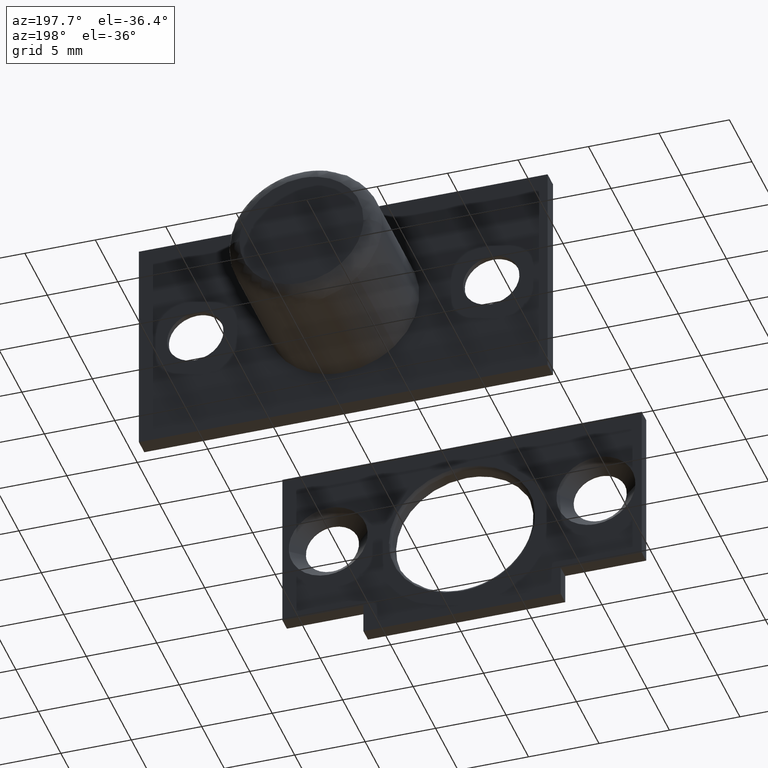
[diagram: clean part render]
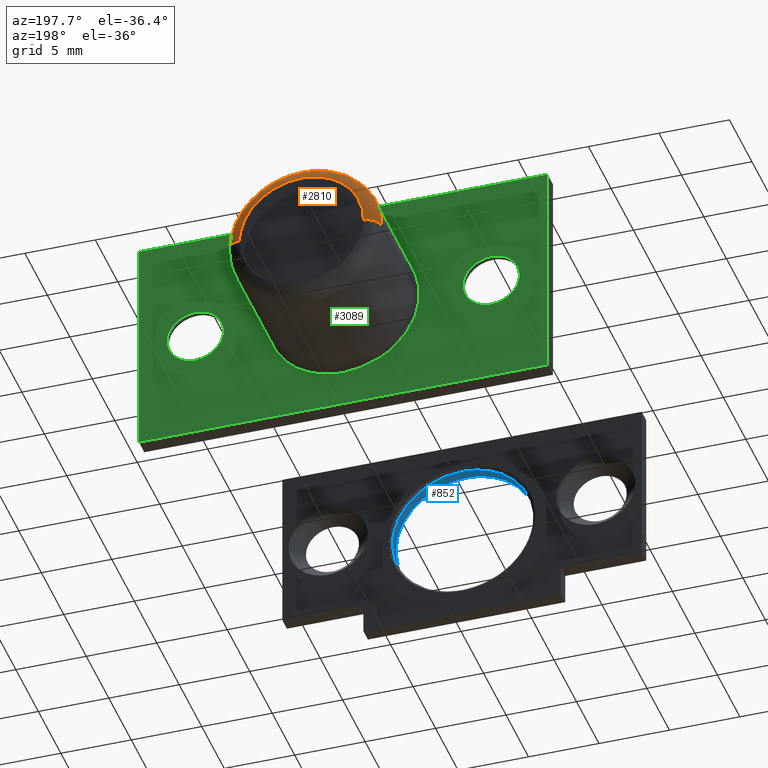
[diagram: same view with three faces highlighted in distinct colors, each labeled with its STEP entity id]
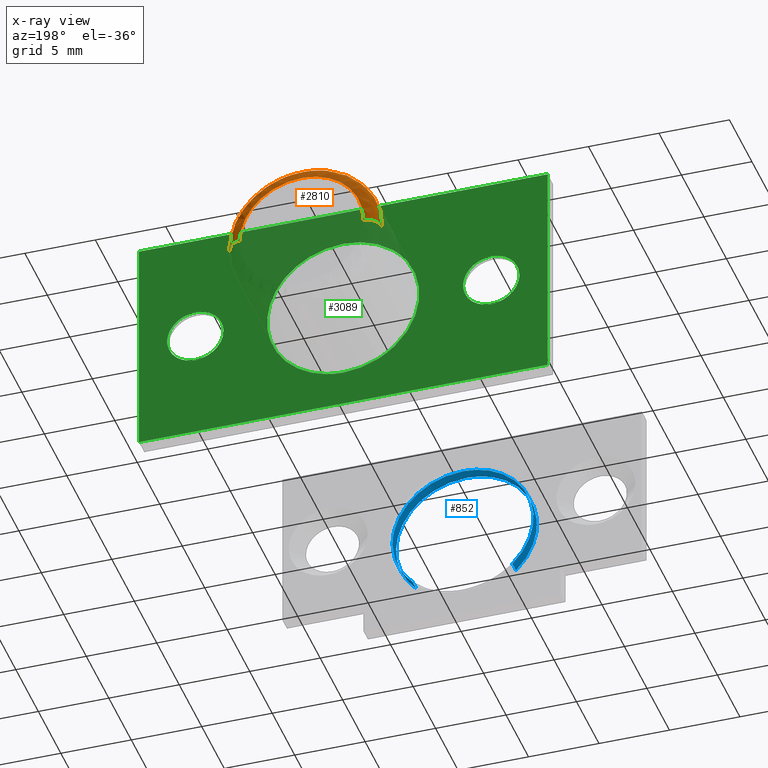
[diagram: x-ray of the same camera — body ghosted, the three highlighted faces saturated]
A machine part, auxiliary view with three faces highlighted in distinct colors.
The next image is the same camera in x-ray (body ghosted, the three faces saturated) — at least one of them is partly hidden behind the body in this view.
Their STEP definitions:

[orange] entity #2810 — the highlighted face is a freeform B-spline surface patch.
#2382=CARTESIAN_POINT('',(5.398295621806994,9.500000000565605,0.135702540803124));
#2383=VERTEX_POINT('',#2382);
#2399=CARTESIAN_POINT('',(0.0,9.500000000000000,5.400000999999997));
#2400=VERTEX_POINT('',#2399);
#2401=CARTESIAN_POINT('',(0.0,9.500000000000000,5.400000999999997));
#2402=CARTESIAN_POINT('',(5.265961506008867,9.500000000000002,5.400000999999996));
#2403=CARTESIAN_POINT('',(5.398295621806994,9.500000000565605,0.135702540803124));
#2411=(BOUNDED_CURVE()B_SPLINE_CURVE(2,(#2401,#2402,#2403),.UNSPECIFIED.,.F.,.U.)B_SPLINE_CURVE_WITH_KNOTS((3,3),(0.0,0.245579891751720),.UNSPECIFIED.)CURVE()GEOMETRIC_REPRESENTATION_ITEM()RATIONAL_B_SPLINE_CURVE((1.0,0.712285260115918,0.989826157640693))REPRESENTATION_ITEM(''));
#2412=EDGE_CURVE('',#2400,#2383,#2411,.T.);
#2414=CARTESIAN_POINT('',(-3.533433849873258,9.500000000000000,4.083485769360440));
#2415=VERTEX_POINT('',#2414);
#2416=CARTESIAN_POINT('',(-3.533433849873257,9.500000000000000,4.083485769360440));
#2417=CARTESIAN_POINT('',(-2.011975846731371,9.500000000000002,5.400000999999999));
#2418=CARTESIAN_POINT('',(0.0,9.500000000000000,5.400000999999997));
#2426=(BOUNDED_CURVE()B_SPLINE_CURVE(2,(#2416,#2417,#2418),.UNSPECIFIED.,.F.,.U.)B_SPLINE_CURVE_WITH_KNOTS((3,3),(0.885882155181983,1.0),.UNSPECIFIED.)CURVE()GEOMETRIC_REPRESENTATION_ITEM()RATIONAL_B_SPLINE_CURVE((0.854663304069898,0.866302628428788,1.0))REPRESENTATION_ITEM(''));
#2427=EDGE_CURVE('',#2415,#2400,#2426,.T.);
#2471=CARTESIAN_POINT('',(-5.398295621806994,9.500000000565605,-0.135702540803128));
#2472=VERTEX_POINT('',#2471);
#2473=CARTESIAN_POINT('',(-5.398295621806994,9.500000000565605,-0.135702540803128));
#2474=CARTESIAN_POINT('',(-5.400001000000000,9.500000000000000,-0.067861986312425));
#2475=CARTESIAN_POINT('',(-5.400001000000000,9.500000000000000,-2.847210E-015));
#2476=CARTESIAN_POINT('',(-5.400001000000000,9.499999999999998,2.468348133567610));
#2477=CARTESIAN_POINT('',(-3.533433849873257,9.500000000000000,4.083485769360440));
#2485=(BOUNDED_CURVE()B_SPLINE_CURVE(2,(#2473,#2474,#2475,#2476,#2477),.UNSPECIFIED.,.F.,.U.)B_SPLINE_CURVE_WITH_KNOTS((3,2,3),(0.745579891751720,0.750000000000000,0.885882155181983),.UNSPECIFIED.)CURVE()GEOMETRIC_REPRESENTATION_ITEM()RATIONAL_B_SPLINE_CURVE((0.989826157640694,0.994821521070630,1.0,0.840804152757759,0.854663304069898))REPRESENTATION_ITEM(''));
#2486=EDGE_CURVE('',#2472,#2415,#2485,.T.);
#2687=CARTESIAN_POINT('',(-4.398611447640397,10.500000000000000,-0.110572447457991));
#2688=VERTEX_POINT('',#2687);
#2689=CARTESIAN_POINT('',(-5.398295621806994,9.500000000565605,-0.135702540803128));
#2690=CARTESIAN_POINT('',(-5.398295620683151,10.499999969670689,-0.135702540495693));
#2691=CARTESIAN_POINT('',(-4.398611447640398,10.500000000000000,-0.110572447457991));
#2699=(BOUNDED_CURVE()B_SPLINE_CURVE(2,(#2689,#2690,#2691),.UNSPECIFIED.,.F.,.U.)B_SPLINE_CURVE_WITH_KNOTS((3,3),(-1.723441280820086,-0.263586910317547),.UNSPECIFIED.)CURVE()GEOMETRIC_REPRESENTATION_ITEM()RATIONAL_B_SPLINE_CURVE((0.883897566728178,0.626638732978030,0.888510397801046))REPRESENTATION_ITEM(''));
#2700=EDGE_CURVE('',#2472,#2688,#2699,.T.);
#2717=CARTESIAN_POINT('',(4.398611447640397,10.500000000000000,0.110572447457986));
#2718=VERTEX_POINT('',#2717);
#2734=CARTESIAN_POINT('',(5.398295621806994,9.500000000565605,0.135702540803124));
#2735=CARTESIAN_POINT('',(5.398295620683154,10.499999969670688,0.135702540495688));
#2736=CARTESIAN_POINT('',(4.398611447640398,10.500000000000000,0.110572447457986));
#2744=(BOUNDED_CURVE()B_SPLINE_CURVE(2,(#2734,#2735,#2736),.UNSPECIFIED.,.F.,.U.)B_SPLINE_CURVE_WITH_KNOTS((3,3),(-1.723441280820087,-0.263586910317547),.UNSPECIFIED.)CURVE()GEOMETRIC_REPRESENTATION_ITEM()RATIONAL_B_SPLINE_CURVE((0.883897566728178,0.626638732978030,0.888510397801046))REPRESENTATION_ITEM(''));
#2745=EDGE_CURVE('',#2383,#2718,#2744,.T.);
#2750=CARTESIAN_POINT('',(-5.395862697820052,9.430275812656380,-0.135641381597301));
#2751=CARTESIAN_POINT('',(-5.531504079417351,9.430275812656380,5.260221316222752));
#2752=CARTESIAN_POINT('',(-0.135641381597299,9.430275812656380,5.395862697820050));
#2753=CARTESIAN_POINT('',(5.260221316222753,9.430275812656380,5.531504079417347));
#2754=CARTESIAN_POINT('',(5.395862697820052,9.430275812656380,0.135641381597296));
#2755=CARTESIAN_POINT('',(-5.476010316573635,10.577335749656749,-0.137656135186910));
#2756=CARTESIAN_POINT('',(-5.613666451760546,10.577335749656751,5.338354181386726));
#2757=CARTESIAN_POINT('',(-0.137656135186908,10.577335749656749,5.476010316573634));
#2758=CARTESIAN_POINT('',(5.338354181386730,10.577335749656751,5.613666451760540));
#2759=CARTESIAN_POINT('',(5.476010316573635,10.577335749656749,0.137656135186905));
#2760=CARTESIAN_POINT('',(-4.329282701616886,10.497592346482175,-0.108829657064820));
#2761=CARTESIAN_POINT('',(-4.438112358681703,10.497592346482175,4.220453044552063));
#2762=CARTESIAN_POINT('',(-0.108829657064818,10.497592346482175,4.329282701616881));
#2763=CARTESIAN_POINT('',(4.220453044552069,10.497592346482175,4.438112358681700));
#2764=CARTESIAN_POINT('',(4.329282701616886,10.497592346482175,0.108829657064816));
#2772=(BOUNDED_SURFACE()B_SPLINE_SURFACE(2,2,((#2750,#2755,#2760),(#2751,#2756,#2761),(#2752,#2757,#2762),(#2753,#2758,#2763),(#2754,#2759,#2764)),.UNSPECIFIED.,.F.,.F.,.U.)B_SPLINE_SURFACE_WITH_KNOTS((3,2,3),(3,3),(0.0,8.942982330219714,17.885964660439431),(0.0,1.822370399371875),.UNSPECIFIED.)GEOMETRIC_REPRESENTATION_ITEM()RATIONAL_B_SPLINE_SURFACE(((0.910892942541887,0.599412921378678,0.915966645999969),(0.644098576606337,0.423848941437702,0.647686226727276),(0.910892942541887,0.599412921378678,0.915966645999969),(0.644098576606337,0.423848941437702,0.647686226727276),(0.910892942541887,0.599412921378678,0.915966645999969)))REPRESENTATION_ITEM('')SURFACE());
#2773=ORIENTED_EDGE('',*,*,#2412,.T.);
#2774=ORIENTED_EDGE('',*,*,#2745,.T.);
#2775=CARTESIAN_POINT('',(0.0,10.500000000000000,4.400000999999997));
#2776=VERTEX_POINT('',#2775);
#2777=CARTESIAN_POINT('',(0.0,10.500000000000000,4.400000999999997));
#2778=CARTESIAN_POINT('',(4.290783626477132,10.500000000000000,4.400000999999996));
#2779=CARTESIAN_POINT('',(4.398611447640397,10.500000000000005,0.110572447457986));
#2787=(BOUNDED_CURVE()B_SPLINE_CURVE(2,(#2777,#2778,#2779),.UNSPECIFIED.,.F.,.U.)B_SPLINE_CURVE_WITH_KNOTS((3,3),(0.0,0.245579891610995),.UNSPECIFIED.)CURVE()GEOMETRIC_REPRESENTATION_ITEM()RATIONAL_B_SPLINE_CURVE((1.0,0.712285260280788,0.989826157322614))REPRESENTATION_ITEM(''));
#2788=EDGE_CURVE('',#2776,#2718,#2787,.T.);
#2789=ORIENTED_EDGE('',*,*,#2788,.F.);
#2790=CARTESIAN_POINT('',(-4.398611447640397,10.500000000000005,-0.110572447457991));
#2791=CARTESIAN_POINT('',(-4.400001000000000,10.500000000000002,-0.055294955906970));
#2792=CARTESIAN_POINT('',(-4.400001000000000,10.500000000000000,-2.847210E-015));
#2793=CARTESIAN_POINT('',(-4.400000999999999,10.500000000000002,4.400000999999998));
#2794=CARTESIAN_POINT('',(0.0,10.500000000000000,4.400000999999997));
#2802=(BOUNDED_CURVE()B_SPLINE_CURVE(2,(#2790,#2791,#2792,#2793,#2794),.UNSPECIFIED.,.F.,.U.)B_SPLINE_CURVE_WITH_KNOTS((3,2,3),(0.745579891610995,0.750000000000000,1.0),.UNSPECIFIED.)CURVE()GEOMETRIC_REPRESENTATION_ITEM()RATIONAL_B_SPLINE_CURVE((0.989826157322614,0.994821520905760,1.0,0.707106781186548,1.0))REPRESENTATION_ITEM(''));
#2803=EDGE_CURVE('',#2688,#2776,#2802,.T.);
#2804=ORIENTED_EDGE('',*,*,#2803,.F.);
#2805=ORIENTED_EDGE('',*,*,#2700,.F.);
#2806=ORIENTED_EDGE('',*,*,#2486,.T.);
#2807=ORIENTED_EDGE('',*,*,#2427,.T.);
#2808=EDGE_LOOP('',(#2773,#2774,#2789,#2804,#2805,#2806,#2807));
#2809=FACE_OUTER_BOUND('',#2808,.T.);
#2810=ADVANCED_FACE('',(#2809),#2772,.T.);

[blue] entity #852 — the highlighted face is a freeform B-spline surface patch.
#716=CARTESIAN_POINT('',(85.264832754229289,-24.601389289179640,-3.504546321499252));
#717=CARTESIAN_POINT('',(81.760286432730041,-24.601389289179636,0.061705924271656));
#718=CARTESIAN_POINT('',(85.326538678500953,-24.601389289179640,3.566252245770908));
#719=CARTESIAN_POINT('',(88.892790924271864,-24.601389289179636,7.070798567270160));
#720=CARTESIAN_POINT('',(92.397337245771112,-24.601389289179640,3.504546321499252));
#721=CARTESIAN_POINT('',(95.901883567270360,-24.601389289179636,-0.061705924271656));
#722=CARTESIAN_POINT('',(92.335631321499449,-24.601389289179640,-3.566252245770908));
#723=CARTESIAN_POINT('',(85.264832754229289,-23.760889287819062,-3.504546321499252));
#724=CARTESIAN_POINT('',(81.760286432730041,-23.760889287819065,0.061705924271656));
#725=CARTESIAN_POINT('',(85.326538678500953,-23.760889287819062,3.566252245770908));
#726=CARTESIAN_POINT('',(88.892790924271864,-23.760889287819065,7.070798567270160));
#727=CARTESIAN_POINT('',(92.397337245771112,-23.760889287819062,3.504546321499252));
#728=CARTESIAN_POINT('',(95.901883567270360,-23.760889287819065,-0.061705924271656));
#729=CARTESIAN_POINT('',(92.335631321499449,-23.760889287819062,-3.566252245770908));
#737=(BOUNDED_SURFACE()B_SPLINE_SURFACE(2,1,((#716,#723),(#717,#724),(#718,#725),(#719,#726),(#720,#727),(#721,#728),(#722,#729)),.UNSPECIFIED.,.F.,.F.,.U.)B_SPLINE_SURFACE_WITH_KNOTS((3,2,2,3),(2,2),(0.0,8.284271247461899,16.568542494923800,24.852813742385699),(0.0,1.0),.UNSPECIFIED.)GEOMETRIC_REPRESENTATION_ITEM()RATIONAL_B_SPLINE_SURFACE(((1.0,1.0),(0.707106781186548,0.707106781186548),(1.0,1.0),(0.707106781186548,0.707106781186548),(1.0,1.0),(0.707106781186548,0.707106781186548),(1.0,1.0)))REPRESENTATION_ITEM('')SURFACE());
#738=CARTESIAN_POINT('',(83.831479778983677,-24.581389288927859,-0.062830199620236));
#739=VERTEX_POINT('',#738);
#740=CARTESIAN_POINT('',(85.264832361932164,-24.581389288178030,-3.504545922264295));
#741=VERTEX_POINT('',#740);
#742=CARTESIAN_POINT('',(83.831479778983677,-24.581389288927856,-0.062830199620236));
#743=CARTESIAN_POINT('',(83.856724612036032,-24.581389288490175,-2.071644424089932));
#744=CARTESIAN_POINT('',(85.264832361932164,-24.581389288178023,-3.504545922264295));
#752=(BOUNDED_CURVE()B_SPLINE_CURVE(2,(#742,#743,#744),.UNSPECIFIED.,.F.,.U.)B_SPLINE_CURVE_WITH_KNOTS((3,3),(0.252215704092587,0.373683208627567),.UNSPECIFIED.)CURVE()GEOMETRIC_REPRESENTATION_ITEM()RATIONAL_B_SPLINE_CURVE((0.994854295611065,0.855068762011657,0.853569642085332))REPRESENTATION_ITEM(''));
#753=EDGE_CURVE('',#739,#741,#752,.T.);
#754=ORIENTED_EDGE('',*,*,#753,.T.);
#755=CARTESIAN_POINT('',(85.264832439610899,-23.781389287852249,-3.504546001341212));
#756=VERTEX_POINT('',#755);
#757=CARTESIAN_POINT('',(85.264832361932164,-24.581389288178030,-3.504545922264295));
#758=CARTESIAN_POINT('',(85.264832439610899,-23.781389287852249,-3.504546001341212));
#759=QUASI_UNIFORM_CURVE('',1,(#757,#758),.UNSPECIFIED.,.F.,.U.);
#760=EDGE_CURVE('',#741,#756,#759,.T.);
#761=ORIENTED_EDGE('',*,*,#760,.T.);
#762=CARTESIAN_POINT('',(88.831085000000201,-23.781389287852249,5.0));
#763=VERTEX_POINT('',#762);
#764=CARTESIAN_POINT('',(88.831085000000201,-23.781389287852249,5.0));
#765=CARTESIAN_POINT('',(83.831085000000201,-23.781389287852253,5.000000000000001));
#766=CARTESIAN_POINT('',(83.831085000000201,-23.781389287852249,0.0));
#767=CARTESIAN_POINT('',(83.831085000000201,-23.781389287852246,-2.045553483138360));
#768=CARTESIAN_POINT('',(85.264832439610899,-23.781389287852249,-3.504546001341211));
#776=(BOUNDED_CURVE()B_SPLINE_CURVE(2,(#764,#765,#766,#767,#768),.UNSPECIFIED.,.F.,.U.)B_SPLINE_CURVE_WITH_KNOTS((3,2,3),(0.0,0.250000000000000,0.373683215316584),.UNSPECIFIED.)CURVE()GEOMETRIC_REPRESENTATION_ITEM()RATIONAL_B_SPLINE_CURVE((1.0,0.707106781186548,1.0,0.855096099810914,0.853569641920224))REPRESENTATION_ITEM(''));
#777=EDGE_CURVE('',#763,#756,#776,.T.);
#778=ORIENTED_EDGE('',*,*,#777,.F.);
#779=CARTESIAN_POINT('',(92.335631058629019,-23.781389287852249,-3.566252504092935));
#780=VERTEX_POINT('',#779);
#781=CARTESIAN_POINT('',(92.335631058629019,-23.781389287852246,-3.566252504092935));
#782=CARTESIAN_POINT('',(93.831085000000201,-23.781389287852249,-2.096674442151647));
#783=CARTESIAN_POINT('',(93.831085000000201,-23.781389287852249,0.0));
#784=CARTESIAN_POINT('',(93.831085000000201,-23.781389287852253,5.000000000000001));
#785=CARTESIAN_POINT('',(88.831085000000201,-23.781389287852249,5.0));
#793=(BOUNDED_CURVE()B_SPLINE_CURVE(2,(#781,#782,#783,#784,#785),.UNSPECIFIED.,.F.,.U.)B_SPLINE_CURVE_WITH_KNOTS((3,2,3),(0.623683220164358,0.750000000000000,1.0),.UNSPECIFIED.)CURVE()GEOMETRIC_REPRESENTATION_ITEM()RATIONAL_B_SPLINE_CURVE((0.853569641800565,0.852010687055155,1.0,0.707106781186548,1.0))REPRESENTATION_ITEM(''));
#794=EDGE_CURVE('',#780,#763,#793,.T.);
#795=ORIENTED_EDGE('',*,*,#794,.F.);
#796=CARTESIAN_POINT('',(92.335631055423292,-24.581389287851930,-3.566252507243181));
#797=VERTEX_POINT('',#796);
#798=CARTESIAN_POINT('',(92.335631055423292,-24.581389287851930,-3.566252507243181));
#799=CARTESIAN_POINT('',(92.335631058629019,-23.781389287852249,-3.566252504092935));
#800=QUASI_UNIFORM_CURVE('',1,(#798,#799),.UNSPECIFIED.,.F.,.U.);
#801=EDGE_CURVE('',#797,#780,#800,.T.);
#802=ORIENTED_EDGE('',*,*,#801,.F.);
#803=CARTESIAN_POINT('',(93.818913369201852,-24.581389289147261,0.348666257884441));
#804=VERTEX_POINT('',#803);
#805=CARTESIAN_POINT('',(92.335631055423292,-24.581389287851923,-3.566252507243181));
#806=CARTESIAN_POINT('',(93.831085000000186,-24.581389287852154,-2.096674447436485));
#807=CARTESIAN_POINT('',(93.831085000000201,-24.581389287852151,0.0));
#808=CARTESIAN_POINT('',(93.831085000000201,-24.581389287852154,0.174545579380814));
#809=CARTESIAN_POINT('',(93.818913369201852,-24.581389289147268,0.348666257884441));
#817=(BOUNDED_CURVE()B_SPLINE_CURVE(2,(#805,#806,#807,#808,#809),.UNSPECIFIED.,.F.,.U.)B_SPLINE_CURVE_WITH_KNOTS((3,2,3),(0.623683219893085,0.750000000000000,0.762166313465364),.UNSPECIFIED.)CURVE()GEOMETRIC_REPRESENTATION_ITEM()RATIONAL_B_SPLINE_CURVE((0.853569641807261,0.852010686737338,1.0,0.985746277152144,0.972879876386012))REPRESENTATION_ITEM(''));
#818=EDGE_CURVE('',#797,#804,#817,.T.);
#819=ORIENTED_EDGE('',*,*,#818,.T.);
#820=CARTESIAN_POINT('',(88.831085000000201,-24.581389287852151,5.0));
#821=VERTEX_POINT('',#820);
#822=CARTESIAN_POINT('',(93.818913369201852,-24.581389289147268,0.348666257884441));
#823=CARTESIAN_POINT('',(93.493769236319750,-24.581389287852140,5.0));
#824=CARTESIAN_POINT('',(88.831085000000201,-24.581389287852151,5.0));
#832=(BOUNDED_CURVE()B_SPLINE_CURVE(2,(#822,#823,#824),.UNSPECIFIED.,.F.,.U.)B_SPLINE_CURVE_WITH_KNOTS((3,3),(0.762166313465364,1.0),.UNSPECIFIED.)CURVE()GEOMETRIC_REPRESENTATION_ITEM()RATIONAL_B_SPLINE_CURVE((0.972879876386012,0.721360504034403,1.0))REPRESENTATION_ITEM(''));
#833=EDGE_CURVE('',#804,#821,#832,.T.);
#834=ORIENTED_EDGE('',*,*,#833,.T.);
#835=CARTESIAN_POINT('',(88.831085000000201,-24.581389287852151,5.0));
#836=CARTESIAN_POINT('',(83.831085000000201,-24.581389287852144,5.000000000000001));
#837=CARTESIAN_POINT('',(83.831085000000201,-24.581389287852151,0.0));
#838=CARTESIAN_POINT('',(83.831085000000215,-24.581389287852154,-0.031416340162945));
#839=CARTESIAN_POINT('',(83.831479778983677,-24.581389288927859,-0.062830199620236));
#847=(BOUNDED_CURVE()B_SPLINE_CURVE(2,(#835,#836,#837,#838,#839),.UNSPECIFIED.,.F.,.U.)B_SPLINE_CURVE_WITH_KNOTS((3,2,3),(0.0,0.250000000000000,0.252215704092587),.UNSPECIFIED.)CURVE()GEOMETRIC_REPRESENTATION_ITEM()RATIONAL_B_SPLINE_CURVE((1.0,0.707106781186548,1.0,0.997404141185537,0.994854295611065))REPRESENTATION_ITEM(''));
#848=EDGE_CURVE('',#821,#739,#847,.T.);
#849=ORIENTED_EDGE('',*,*,#848,.T.);
#850=EDGE_LOOP('',(#754,#761,#778,#795,#802,#819,#834,#849));
#851=FACE_OUTER_BOUND('',#850,.T.);
#852=ADVANCED_FACE('',(#851),#737,.F.);

[green] entity #3089 — the highlighted face is a freeform B-spline surface patch.
#1668=CARTESIAN_POINT('',(12.486938320145081,1.199997000000000,-0.228201910462429));
#1669=VERTEX_POINT('',#1668);
#1675=CARTESIAN_POINT('',(10.500000000000000,1.199997000000000,-2.000000000000003));
#1676=VERTEX_POINT('',#1675);
#1677=CARTESIAN_POINT('',(12.486938320145081,1.199996999999999,-0.228201910462429));
#1678=CARTESIAN_POINT('',(12.283444961621033,1.199997000000000,-2.000000000000002));
#1679=CARTESIAN_POINT('',(10.500000000000000,1.199997000000000,-2.000000000000003));
#1687=(BOUNDED_CURVE()B_SPLINE_CURVE(2,(#1677,#1678,#1679),.UNSPECIFIED.,.F.,.U.)B_SPLINE_CURVE_WITH_KNOTS((3,3),(0.269767854846008,0.500000000000000),.UNSPECIFIED.)CURVE()GEOMETRIC_REPRESENTATION_ITEM()RATIONAL_B_SPLINE_CURVE((0.957343541234126,0.730266263726086,1.0))REPRESENTATION_ITEM(''));
#1688=EDGE_CURVE('',#1669,#1676,#1687,.T.);
#1690=CARTESIAN_POINT('',(8.503730403178508,1.199997000000000,-0.122097079433352));
#1691=VERTEX_POINT('',#1690);
#1692=CARTESIAN_POINT('',(10.500000000000000,1.199997000000000,-2.000000000000003));
#1693=CARTESIAN_POINT('',(8.618587866875325,1.199997000000000,-2.000000000000004));
#1694=CARTESIAN_POINT('',(8.503730403178508,1.199997000000000,-0.122097079433352));
#1702=(BOUNDED_CURVE()B_SPLINE_CURVE(2,(#1692,#1693,#1694),.UNSPECIFIED.,.F.,.U.)B_SPLINE_CURVE_WITH_KNOTS((3,3),(0.500000000000000,0.739332962179106),.UNSPECIFIED.)CURVE()GEOMETRIC_REPRESENTATION_ITEM()RATIONAL_B_SPLINE_CURVE((1.0,0.719603993356813,0.976072041538476))REPRESENTATION_ITEM(''));
#1703=EDGE_CURVE('',#1676,#1691,#1702,.T.);
#1798=CARTESIAN_POINT('',(10.500000000000000,1.199997000000000,1.999999999999997));
#1799=VERTEX_POINT('',#1798);
#1800=CARTESIAN_POINT('',(8.503730403178508,1.199997000000000,-0.122097079433352));
#1801=CARTESIAN_POINT('',(8.500000000000000,1.199997000000000,-0.061105526961836));
#1802=CARTESIAN_POINT('',(8.500000000000000,1.199997000000000,-2.847210E-015));
#1803=CARTESIAN_POINT('',(8.500000000000002,1.199997000000000,1.999999999999997));
#1804=CARTESIAN_POINT('',(10.500000000000000,1.199997000000000,1.999999999999997));
#1812=(BOUNDED_CURVE()B_SPLINE_CURVE(2,(#1800,#1801,#1802,#1803,#1804),.UNSPECIFIED.,.F.,.U.)B_SPLINE_CURVE_WITH_KNOTS((3,2,3),(0.739332962179107,0.750000000000000,1.0),.UNSPECIFIED.)CURVE()GEOMETRIC_REPRESENTATION_ITEM()RATIONAL_B_SPLINE_CURVE((0.976072041538478,0.987502787829735,1.0,0.707106781186548,1.0))REPRESENTATION_ITEM(''));
#1813=EDGE_CURVE('',#1691,#1799,#1812,.T.);
#1815=CARTESIAN_POINT('',(10.500000000000000,1.199997000000000,1.999999999999997));
#1816=CARTESIAN_POINT('',(12.500000000000000,1.199997000000000,1.999999999999997));
#1817=CARTESIAN_POINT('',(12.500000000000000,1.199997000000000,-2.847210E-015));
#1818=CARTESIAN_POINT('',(12.499999999999996,1.199997000000000,-0.114475056767412));
#1819=CARTESIAN_POINT('',(12.486938320145082,1.199997000000000,-0.228201910462429));
#1827=(BOUNDED_CURVE()B_SPLINE_CURVE(2,(#1815,#1816,#1817,#1818,#1819),.UNSPECIFIED.,.F.,.U.)B_SPLINE_CURVE_WITH_KNOTS((3,2,3),(0.0,0.250000000000000,0.269767854846009),.UNSPECIFIED.)CURVE()GEOMETRIC_REPRESENTATION_ITEM()RATIONAL_B_SPLINE_CURVE((1.0,0.707106781186548,1.0,0.976840517460462,0.957343541234126))REPRESENTATION_ITEM(''));
#1828=EDGE_CURVE('',#1799,#1669,#1827,.T.);
#1996=CARTESIAN_POINT('',(-8.513061679854918,1.199997000000000,-0.228201910462429));
#1997=VERTEX_POINT('',#1996);
#2003=CARTESIAN_POINT('',(-10.500000000000000,1.199997000000000,-2.000000000000003));
#2004=VERTEX_POINT('',#2003);
#2005=CARTESIAN_POINT('',(-8.513061679854918,1.199996999999999,-0.228201910462429));
#2006=CARTESIAN_POINT('',(-8.716555038378967,1.199997000000000,-2.000000000000002));
#2007=CARTESIAN_POINT('',(-10.500000000000000,1.199997000000000,-2.000000000000003));
#2015=(BOUNDED_CURVE()B_SPLINE_CURVE(2,(#2005,#2006,#2007),.UNSPECIFIED.,.F.,.U.)B_SPLINE_CURVE_WITH_KNOTS((3,3),(0.269767854846008,0.500000000000000),.UNSPECIFIED.)CURVE()GEOMETRIC_REPRESENTATION_ITEM()RATIONAL_B_SPLINE_CURVE((0.957343541234126,0.730266263726086,1.0))REPRESENTATION_ITEM(''));
#2016=EDGE_CURVE('',#1997,#2004,#2015,.T.);
#2018=CARTESIAN_POINT('',(-12.496269596821490,1.199997000000000,-0.122097079433352));
#2019=VERTEX_POINT('',#2018);
#2020=CARTESIAN_POINT('',(-10.500000000000000,1.199997000000000,-2.000000000000003));
#2021=CARTESIAN_POINT('',(-12.381412133124675,1.199997000000000,-2.000000000000004));
#2022=CARTESIAN_POINT('',(-12.496269596821493,1.199997000000000,-0.122097079433352));
#2030=(BOUNDED_CURVE()B_SPLINE_CURVE(2,(#2020,#2021,#2022),.UNSPECIFIED.,.F.,.U.)B_SPLINE_CURVE_WITH_KNOTS((3,3),(0.500000000000000,0.739332962179106),.UNSPECIFIED.)CURVE()GEOMETRIC_REPRESENTATION_ITEM()RATIONAL_B_SPLINE_CURVE((1.0,0.719603993356813,0.976072041538476))REPRESENTATION_ITEM(''));
#2031=EDGE_CURVE('',#2004,#2019,#2030,.T.);
#2126=CARTESIAN_POINT('',(-10.500000000000000,1.199997000000000,1.999999999999997));
#2127=VERTEX_POINT('',#2126);
#2128=CARTESIAN_POINT('',(-12.496269596821495,1.199997000000000,-0.122097079433352));
#2129=CARTESIAN_POINT('',(-12.500000000000000,1.199997000000000,-0.061105526961836));
#2130=CARTESIAN_POINT('',(-12.500000000000000,1.199997000000000,-2.847210E-015));
#2131=CARTESIAN_POINT('',(-12.500000000000000,1.199997000000000,1.999999999999997));
#2132=CARTESIAN_POINT('',(-10.500000000000000,1.199997000000000,1.999999999999997));
#2140=(BOUNDED_CURVE()B_SPLINE_CURVE(2,(#2128,#2129,#2130,#2131,#2132),.UNSPECIFIED.,.F.,.U.)B_SPLINE_CURVE_WITH_KNOTS((3,2,3),(0.739332962179107,0.750000000000000,1.0),.UNSPECIFIED.)CURVE()GEOMETRIC_REPRESENTATION_ITEM()RATIONAL_B_SPLINE_CURVE((0.976072041538478,0.987502787829735,1.0,0.707106781186548,1.0))REPRESENTATION_ITEM(''));
#2141=EDGE_CURVE('',#2019,#2127,#2140,.T.);
#2143=CARTESIAN_POINT('',(-10.500000000000000,1.199997000000000,1.999999999999997));
#2144=CARTESIAN_POINT('',(-8.500000000000002,1.199997000000000,1.999999999999997));
#2145=CARTESIAN_POINT('',(-8.500000000000000,1.199997000000000,-2.847210E-015));
#2146=CARTESIAN_POINT('',(-8.499999999999998,1.199997000000000,-0.114475056767412));
#2147=CARTESIAN_POINT('',(-8.513061679854918,1.199997000000000,-0.228201910462429));
#2155=(BOUNDED_CURVE()B_SPLINE_CURVE(2,(#2143,#2144,#2145,#2146,#2147),.UNSPECIFIED.,.F.,.U.)B_SPLINE_CURVE_WITH_KNOTS((3,2,3),(0.0,0.250000000000000,0.269767854846009),.UNSPECIFIED.)CURVE()GEOMETRIC_REPRESENTATION_ITEM()RATIONAL_B_SPLINE_CURVE((1.0,0.707106781186548,1.0,0.976840517460462,0.957343541234126))REPRESENTATION_ITEM(''));
#2156=EDGE_CURVE('',#2127,#1997,#2155,.T.);
#2311=CARTESIAN_POINT('',(-3.533433838263440,1.199997000000043,4.083485779406393));
#2312=VERTEX_POINT('',#2311);
#2313=CARTESIAN_POINT('',(0.0,1.199997000000000,5.400000999999997));
#2314=VERTEX_POINT('',#2313);
#2315=CARTESIAN_POINT('',(-3.533433838263440,1.199997000000043,4.083485779406393));
#2316=CARTESIAN_POINT('',(-2.011975837989309,1.199997000000000,5.400000999999997));
#2317=CARTESIAN_POINT('',(0.0,1.199997000000000,5.400000999999997));
#2325=(BOUNDED_CURVE()B_SPLINE_CURVE(2,(#2315,#2316,#2317),.UNSPECIFIED.,.F.,.U.)B_SPLINE_CURVE_WITH_KNOTS((3,3),(0.885882155611534,1.0),.UNSPECIFIED.)CURVE()GEOMETRIC_REPRESENTATION_ITEM()RATIONAL_B_SPLINE_CURVE((0.854663304157521,0.866302628932038,1.0))REPRESENTATION_ITEM(''));
#2326=EDGE_CURVE('',#2312,#2314,#2325,.T.);
#2328=CARTESIAN_POINT('',(0.0,1.199997000000000,-5.400001000000002));
#2329=VERTEX_POINT('',#2328);
#2330=CARTESIAN_POINT('',(0.0,1.199997000000000,5.400000999999997));
#2331=CARTESIAN_POINT('',(5.400001000000000,1.199997000000000,5.400000999999997));
#2332=CARTESIAN_POINT('',(5.400001000000000,1.199997000000000,-2.847210E-015));
#2333=CARTESIAN_POINT('',(5.400001000000000,1.199997000000000,-5.400001000000002));
#2334=CARTESIAN_POINT('',(0.0,1.199997000000000,-5.400001000000002));
#2342=(BOUNDED_CURVE()B_SPLINE_CURVE(2,(#2330,#2331,#2332,#2333,#2334),.UNSPECIFIED.,.F.,.U.)B_SPLINE_CURVE_WITH_KNOTS((3,2,3),(0.0,0.250000000000000,0.500000000000000),.UNSPECIFIED.)CURVE()GEOMETRIC_REPRESENTATION_ITEM()RATIONAL_B_SPLINE_CURVE((1.0,0.707106781186547,1.0,0.707106781186547,1.0))REPRESENTATION_ITEM(''));
#2343=EDGE_CURVE('',#2314,#2329,#2342,.T.);
#2345=CARTESIAN_POINT('',(-3.648187369666437,1.199997000000000,-3.981298747369626));
#2346=VERTEX_POINT('',#2345);
#2347=CARTESIAN_POINT('',(0.0,1.199997000000000,-5.400001000000002));
#2348=CARTESIAN_POINT('',(-2.099944874067488,1.199997000000000,-5.400001000000003));
#2349=CARTESIAN_POINT('',(-3.648187369666437,1.199997000000001,-3.981298747369626));
#2357=(BOUNDED_CURVE()B_SPLINE_CURVE(2,(#2347,#2348,#2349),.UNSPECIFIED.,.F.,.U.)B_SPLINE_CURVE_WITH_KNOTS((3,3),(0.500000000000000,0.618415176699014),.UNSPECIFIED.)CURVE()GEOMETRIC_REPRESENTATION_ITEM()RATIONAL_B_SPLINE_CURVE((1.0,0.861267990961048,0.853959784835350))REPRESENTATION_ITEM(''));
#2358=EDGE_CURVE('',#2329,#2346,#2357,.T.);
#2455=CARTESIAN_POINT('',(-3.648187369666437,1.199997000000001,-3.981298747369626));
#2456=CARTESIAN_POINT('',(-5.400001000000000,1.199997000000000,-2.376057998192897));
#2457=CARTESIAN_POINT('',(-5.400001000000000,1.199997000000000,-2.847210E-015));
#2458=CARTESIAN_POINT('',(-5.400001000000001,1.199997000000000,2.468348142847942));
#2459=CARTESIAN_POINT('',(-3.533433838263440,1.199997000000043,4.083485779406393));
#2467=(BOUNDED_CURVE()B_SPLINE_CURVE(2,(#2455,#2456,#2457,#2458,#2459),.UNSPECIFIED.,.F.,.U.)B_SPLINE_CURVE_WITH_KNOTS((3,2,3),(0.618415176699013,0.750000000000000,0.885882155611534),.UNSPECIFIED.)CURVE()GEOMETRIC_REPRESENTATION_ITEM()RATIONAL_B_SPLINE_CURVE((0.853959784835350,0.845838790225498,1.0,0.840804152254510,0.854663304157521))REPRESENTATION_ITEM(''));
#2468=EDGE_CURVE('',#2346,#2312,#2467,.T.);
#2953=CARTESIAN_POINT('',(-14.500000000000000,1.199997000000064,8.0));
#2954=VERTEX_POINT('',#2953);
#2955=CARTESIAN_POINT('',(-14.500000000000000,1.199997000000064,-8.0));
#2956=VERTEX_POINT('',#2955);
#2957=CARTESIAN_POINT('',(-14.500000000000000,1.199997000000064,8.0));
#2958=CARTESIAN_POINT('',(-14.500000000000000,1.199997000000064,-8.0));
#2959=QUASI_UNIFORM_CURVE('',1,(#2957,#2958),.UNSPECIFIED.,.F.,.U.);
#2960=EDGE_CURVE('',#2954,#2956,#2959,.T.);
#2989=CARTESIAN_POINT('',(14.500000000000000,1.199997000000064,8.0));
#2990=VERTEX_POINT('',#2989);
#2991=CARTESIAN_POINT('',(14.500000000000000,1.199997000000064,8.0));
#2992=CARTESIAN_POINT('',(-14.500000000000000,1.199997000000064,8.0));
#2993=QUASI_UNIFORM_CURVE('',1,(#2991,#2992),.UNSPECIFIED.,.F.,.U.);
#2994=EDGE_CURVE('',#2990,#2954,#2993,.T.);
#3017=CARTESIAN_POINT('',(14.500000000000000,1.199997000000064,-8.0));
#3018=VERTEX_POINT('',#3017);
#3019=CARTESIAN_POINT('',(14.500000000000000,1.199997000000064,-8.0));
#3020=CARTESIAN_POINT('',(14.500000000000000,1.199997000000064,8.0));
#3021=QUASI_UNIFORM_CURVE('',1,(#3019,#3020),.UNSPECIFIED.,.F.,.U.);
#3022=EDGE_CURVE('',#3018,#2990,#3021,.T.);
#3045=CARTESIAN_POINT('',(-14.500000000000000,1.199997000000064,-8.0));
#3046=CARTESIAN_POINT('',(14.500000000000000,1.199997000000064,-8.0));
#3047=QUASI_UNIFORM_CURVE('',1,(#3045,#3046),.UNSPECIFIED.,.F.,.U.);
#3048=EDGE_CURVE('',#2956,#3018,#3047,.T.);
#3060=CARTESIAN_POINT('',(-15.948549943792379,1.199997000000000,8.799199968988896));
#3061=CARTESIAN_POINT('',(15.948550721632991,1.199997000000000,8.799199968988896));
#3062=CARTESIAN_POINT('',(-15.948549943792379,1.199997000000000,-8.799200398142338));
#3063=CARTESIAN_POINT('',(15.948550721632991,1.199997000000000,-8.799200398142338));
#3064=B_SPLINE_SURFACE_WITH_KNOTS('',1,1,((#3060,#3062),(#3061,#3063)),.UNSPECIFIED.,.F.,.F.,.U.,(2,2),(2,2),(0.0,31.897100665425370),(0.0,17.598400367131230),.UNSPECIFIED.);
#3065=ORIENTED_EDGE('',*,*,#3048,.F.);
#3066=ORIENTED_EDGE('',*,*,#2960,.F.);
#3067=ORIENTED_EDGE('',*,*,#2994,.F.);
#3068=ORIENTED_EDGE('',*,*,#3022,.F.);
#3069=EDGE_LOOP('',(#3065,#3066,#3067,#3068));
#3070=FACE_OUTER_BOUND('',#3069,.T.);
#3071=ORIENTED_EDGE('',*,*,#2343,.F.);
#3072=ORIENTED_EDGE('',*,*,#2326,.F.);
#3073=ORIENTED_EDGE('',*,*,#2468,.F.);
#3074=ORIENTED_EDGE('',*,*,#2358,.F.);
#3075=EDGE_LOOP('',(#3071,#3072,#3073,#3074));
#3076=FACE_BOUND('',#3075,.T.);
#3077=ORIENTED_EDGE('',*,*,#2031,.F.);
#3078=ORIENTED_EDGE('',*,*,#2016,.F.);
#3079=ORIENTED_EDGE('',*,*,#2156,.F.);
#3080=ORIENTED_EDGE('',*,*,#2141,.F.);
#3081=EDGE_LOOP('',(#3077,#3078,#3079,#3080));
#3082=FACE_BOUND('',#3081,.T.);
#3083=ORIENTED_EDGE('',*,*,#1703,.F.);
#3084=ORIENTED_EDGE('',*,*,#1688,.F.);
#3085=ORIENTED_EDGE('',*,*,#1828,.F.);
#3086=ORIENTED_EDGE('',*,*,#1813,.F.);
#3087=EDGE_LOOP('',(#3083,#3084,#3085,#3086));
#3088=FACE_BOUND('',#3087,.T.);
#3089=ADVANCED_FACE('',(#3070,#3076,#3082,#3088),#3064,.T.);